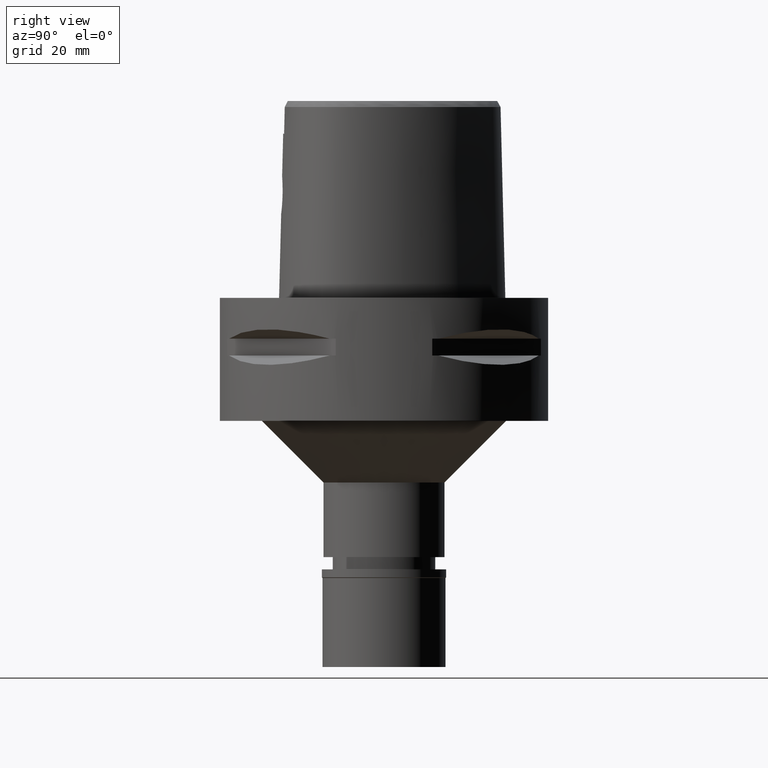
[diagram: clean part render]
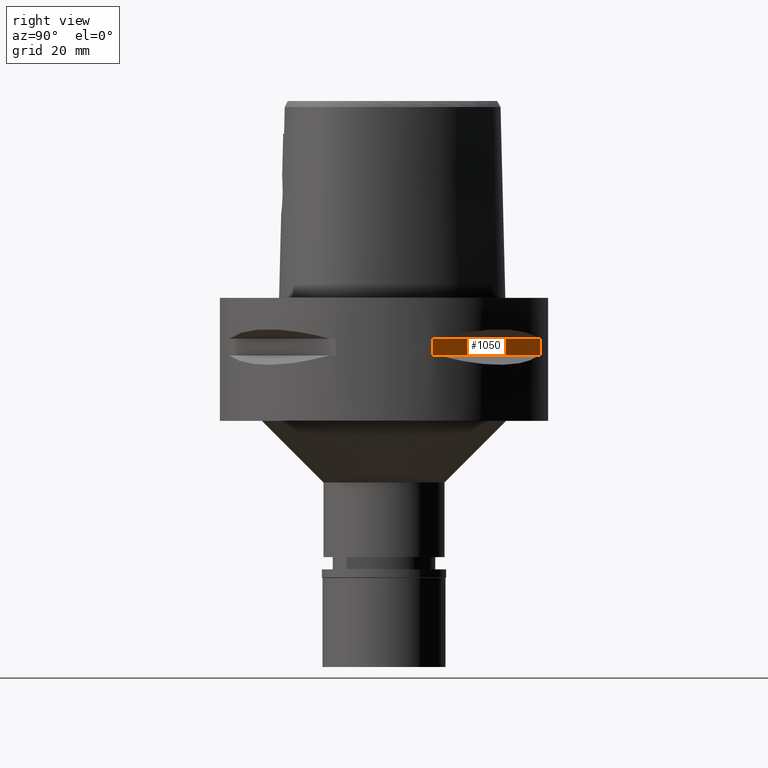
[diagram: same view with one face highlighted and labeled with its STEP entity id]
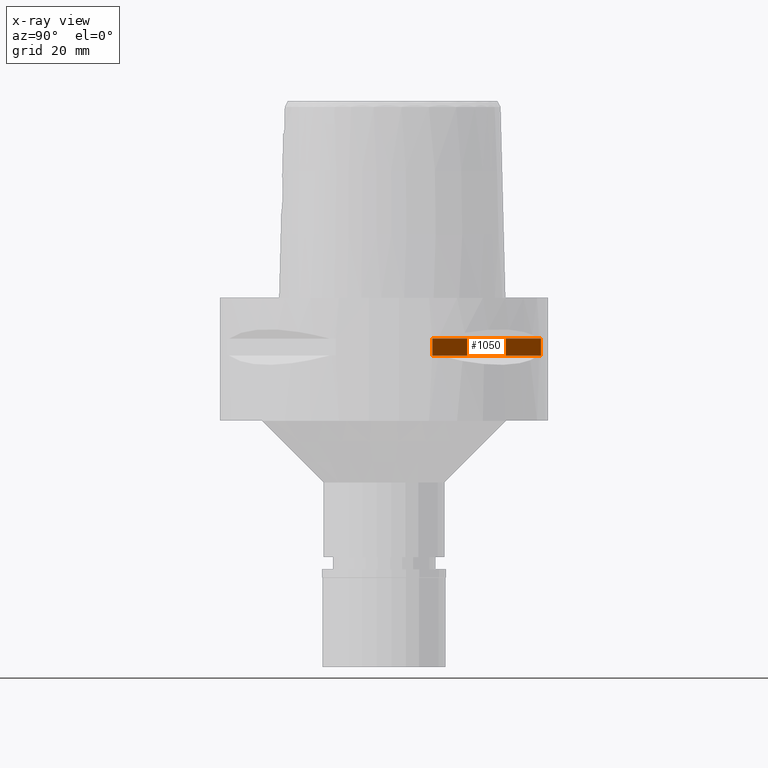
[diagram: x-ray of the same camera — body ghosted, the highlighted face saturated]
A machine part, right view. The second image highlights one B-rep face of the part: STEP entity #1050.
The next image is the same camera in x-ray: the body ghosted, the highlighted face saturated — about 0% of this face is hidden behind the body in this view.
In plain terms, the highlighted planar face has unit normal (-0.7071, -0.7071, 0).
Its self-contained STEP definition (entity closure, byte-faithful):
#80 = CARTESIAN_POINT ( 'NONE',  ( 7.318555185280999353, 42.67389424461000402, -9.950000000000001066 ) ) ;
#113 = VERTEX_POINT ( 'NONE', #792 ) ;
#155 = VECTOR ( 'NONE', #3794, 1000.000000000000000 ) ;
#211 = DIRECTION ( 'NONE',  ( -0.7071067811865474617, 0.7071067811865474617, 0.0000000000000000000 ) ) ;
#298 = CARTESIAN_POINT ( 'NONE',  ( 38.23211342708000160, 11.76033600280999991, -9.950000000000001066 ) ) ;
#337 = CARTESIAN_POINT ( 'NONE',  ( 38.23211342708000160, 11.76033600280999991, -9.950000000000001066 ) ) ;
#448 = DIRECTION ( 'NONE',  ( -0.7071067811865475727, -0.7071067811865475727, 0.0000000000000000000 ) ) ;
#502 = FACE_OUTER_BOUND ( 'NONE', #3439, .T. ) ;
#609 = LINE ( 'NONE', #298, #2336 ) ;
#695 = VERTEX_POINT ( 'NONE', #3320 ) ;
#778 = CARTESIAN_POINT ( 'NONE',  ( 11.76033600280999991, 38.23211342708000160, -14.05000000000000071 ) ) ;
#792 = CARTESIAN_POINT ( 'NONE',  ( 11.76033600280999991, 38.23211342708000160, -9.950000000000001066 ) ) ;
#955 = PLANE ( 'NONE',  #4826 ) ;
#1050 = ADVANCED_FACE ( 'NONE', ( #502 ), #955, .F. ) ;
#1143 = DIRECTION ( 'NONE',  ( -0.7071067811865474617, 0.7071067811865474617, 0.0000000000000000000 ) ) ;
#1318 = EDGE_CURVE ( 'NONE', #2810, #113, #609, .T. ) ;
#1373 = LINE ( 'NONE', #3398, #155 ) ;
#1524 = CARTESIAN_POINT ( 'NONE',  ( 38.23211342708000160, 11.76033600280999991, -14.05000000000000071 ) ) ;
#1549 = ORIENTED_EDGE ( 'NONE', *, *, #1634, .T. ) ;
#1634 = EDGE_CURVE ( 'NONE', #695, #113, #3437, .T. ) ;
#1642 = EDGE_CURVE ( 'NONE', #2882, #695, #4611, .T. ) ;
#1977 = CARTESIAN_POINT ( 'NONE',  ( 38.23211342708000160, 11.76033600280999991, -14.05000000000000071 ) ) ;
#2336 = VECTOR ( 'NONE', #211, 1000.000000000000114 ) ;
#2607 = ORIENTED_EDGE ( 'NONE', *, *, #3508, .T. ) ;
#2810 = VERTEX_POINT ( 'NONE', #337 ) ;
#2882 = VERTEX_POINT ( 'NONE', #1977 ) ;
#2905 = ORIENTED_EDGE ( 'NONE', *, *, #1318, .F. ) ;
#3144 = VECTOR ( 'NONE', #1143, 1000.000000000000114 ) ;
#3320 = CARTESIAN_POINT ( 'NONE',  ( 11.76033600280999991, 38.23211342708000160, -14.05000000000000071 ) ) ;
#3398 = CARTESIAN_POINT ( 'NONE',  ( 38.23211342708000160, 11.76033600280999991, -9.950000000000001066 ) ) ;
#3437 = LINE ( 'NONE', #778, #4679 ) ;
#3439 = EDGE_LOOP ( 'NONE', ( #2905, #2607, #3661, #1549 ) ) ;
#3508 = EDGE_CURVE ( 'NONE', #2810, #2882, #1373, .T. ) ;
#3661 = ORIENTED_EDGE ( 'NONE', *, *, #1642, .T. ) ;
#3794 = DIRECTION ( 'NONE',  ( 0.0000000000000000000, 0.0000000000000000000, -1.000000000000000000 ) ) ;
#4393 = DIRECTION ( 'NONE',  ( -0.7071067811865475727, 0.7071067811865475727, 0.0000000000000000000 ) ) ;
#4611 = LINE ( 'NONE', #1524, #3144 ) ;
#4679 = VECTOR ( 'NONE', #4981, 1000.000000000000000 ) ;
#4826 = AXIS2_PLACEMENT_3D ( 'NONE', #80, #448, #4393 ) ;
#4981 = DIRECTION ( 'NONE',  ( 0.0000000000000000000, 0.0000000000000000000, 1.000000000000000000 ) ) ;